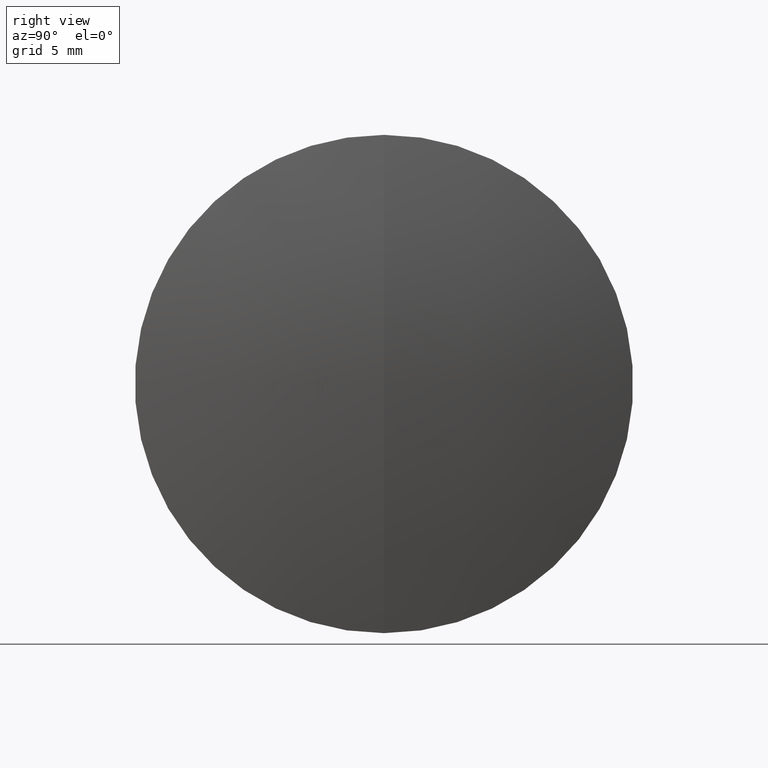
[diagram: clean part render]
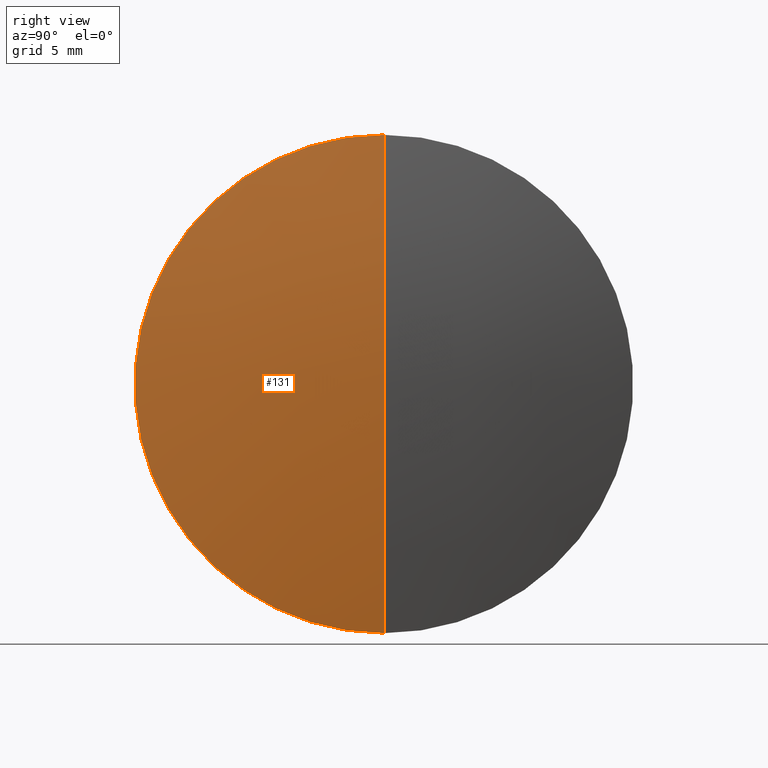
[diagram: same view with one face highlighted and labeled with its STEP entity id]
A machine part, right view. The second image highlights one B-rep face of the part: STEP entity #131.
In plain terms, the highlighted spherical surface has radius 75.68 mm.
Its self-contained STEP definition (entity closure, byte-faithful):
#18 = AXIS2_PLACEMENT_3D ( 'NONE', #26, #205, #231 ) ;
#26 = CARTESIAN_POINT ( 'NONE',  ( -52.57130196904471100, 0.0000000000000000000, 0.0000000000000000000 ) ) ;
#33 = SPHERICAL_SURFACE ( 'NONE', #233, 75.68000000000002100 ) ;
#50 = VERTEX_POINT ( 'NONE', #259 ) ;
#51 = CIRCLE ( 'NONE', #108, 15.00000000000000200 ) ;
#54 = DIRECTION ( 'NONE',  ( -1.000000000000000000, -0.0000000000000000000, -0.0000000000000000000 ) ) ;
#76 = CARTESIAN_POINT ( 'NONE',  ( 21.60728254158073400, 0.0000000000000000000, 0.0000000000000000000 ) ) ;
#81 = DIRECTION ( 'NONE',  ( 0.0000000000000000000, 0.0000000000000000000, -1.000000000000000000 ) ) ;
#107 = DIRECTION ( 'NONE',  ( 0.0000000000000000000, -1.000000000000000000, -1.224646799147353200E-016 ) ) ;
#108 = AXIS2_PLACEMENT_3D ( 'NONE', #76, #54, #272 ) ;
#109 = FACE_OUTER_BOUND ( 'NONE', #115, .T. ) ;
#115 = EDGE_LOOP ( 'NONE', ( #138, #187, #273 ) ) ;
#131 = ADVANCED_FACE ( 'NONE', ( #109 ), #33, .T. ) ;
#138 = ORIENTED_EDGE ( 'NONE', *, *, #268, .F. ) ;
#162 = DIRECTION ( 'NONE',  ( 0.0000000000000000000, 1.224646799147353200E-016, -1.000000000000000000 ) ) ;
#176 = CARTESIAN_POINT ( 'NONE',  ( 21.60728254158073700, -1.836970198721032300E-015, 15.00000000000002100 ) ) ;
#187 = ORIENTED_EDGE ( 'NONE', *, *, #207, .T. ) ;
#205 = DIRECTION ( 'NONE',  ( 0.0000000000000000000, 1.000000000000000000, -0.0000000000000000000 ) ) ;
#207 = EDGE_CURVE ( 'NONE', #341, #213, #232, .T. ) ;
#213 = VERTEX_POINT ( 'NONE', #176 ) ;
#231 = DIRECTION ( 'NONE',  ( 0.0000000000000000000, 0.0000000000000000000, 1.000000000000000000 ) ) ;
#232 = CIRCLE ( 'NONE', #340, 75.68000000000002100 ) ;
#233 = AXIS2_PLACEMENT_3D ( 'NONE', #290, #298, #81 ) ;
#259 = CARTESIAN_POINT ( 'NONE',  ( 21.60728254158073700, 0.0000000000000000000, -15.00000000000002100 ) ) ;
#268 = EDGE_CURVE ( 'NONE', #341, #50, #293, .T. ) ;
#272 = DIRECTION ( 'NONE',  ( 0.0000000000000000000, 0.0000000000000000000, 1.000000000000000000 ) ) ;
#273 = ORIENTED_EDGE ( 'NONE', *, *, #275, .F. ) ;
#275 = EDGE_CURVE ( 'NONE', #50, #213, #51, .T. ) ;
#276 = CARTESIAN_POINT ( 'NONE',  ( -52.57130196904471100, 0.0000000000000000000, 0.0000000000000000000 ) ) ;
#290 = CARTESIAN_POINT ( 'NONE',  ( -52.57130196904471100, 0.0000000000000000000, 0.0000000000000000000 ) ) ;
#293 = CIRCLE ( 'NONE', #18, 75.68000000000002100 ) ;
#298 = DIRECTION ( 'NONE',  ( -0.0000000000000000000, -1.000000000000000000, -0.0000000000000000000 ) ) ;
#328 = CARTESIAN_POINT ( 'NONE',  ( 23.10869803095531300, 0.0000000000000000000, -4.634063487973585500E-015 ) ) ;
#340 = AXIS2_PLACEMENT_3D ( 'NONE', #276, #107, #162 ) ;
#341 = VERTEX_POINT ( 'NONE', #328 ) ;